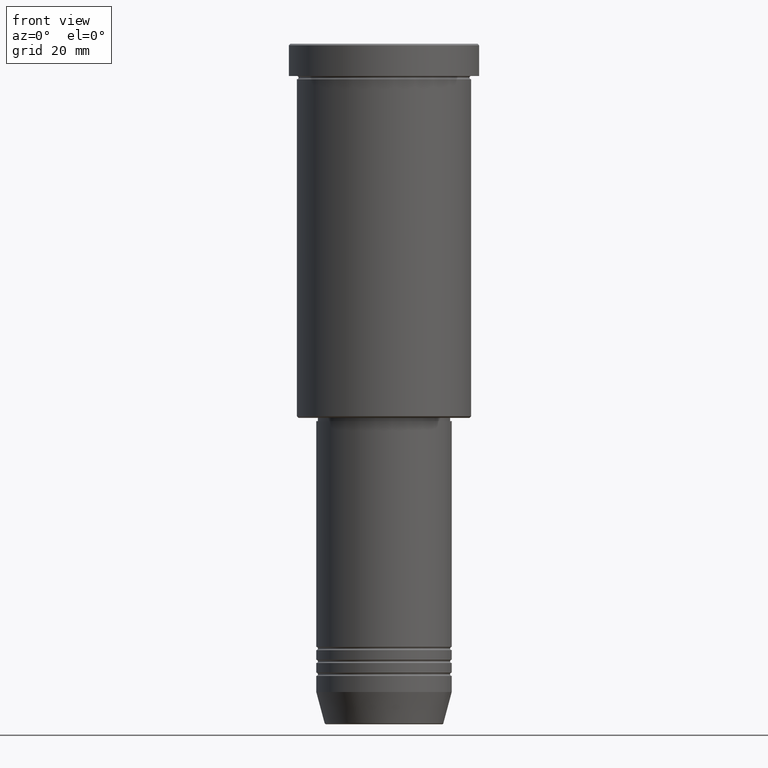
[diagram: clean part render]
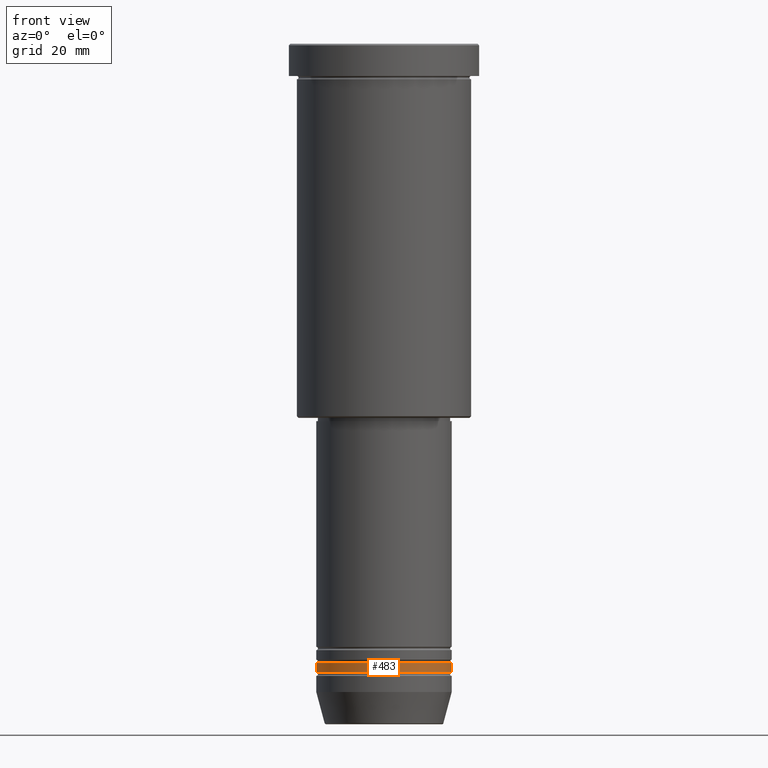
[diagram: same view with one face highlighted and labeled with its STEP entity id]
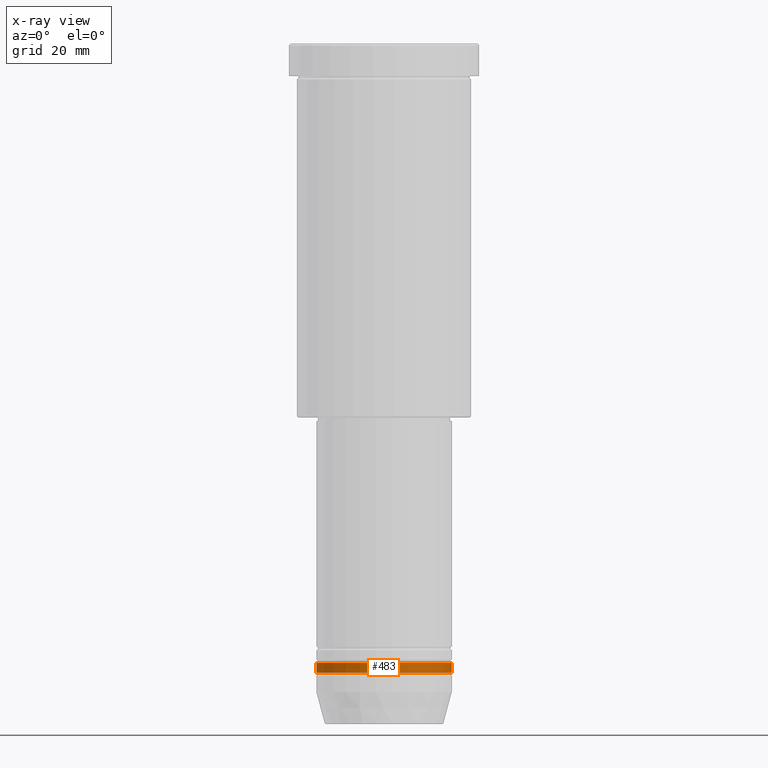
[diagram: x-ray of the same camera — body ghosted, the highlighted face saturated]
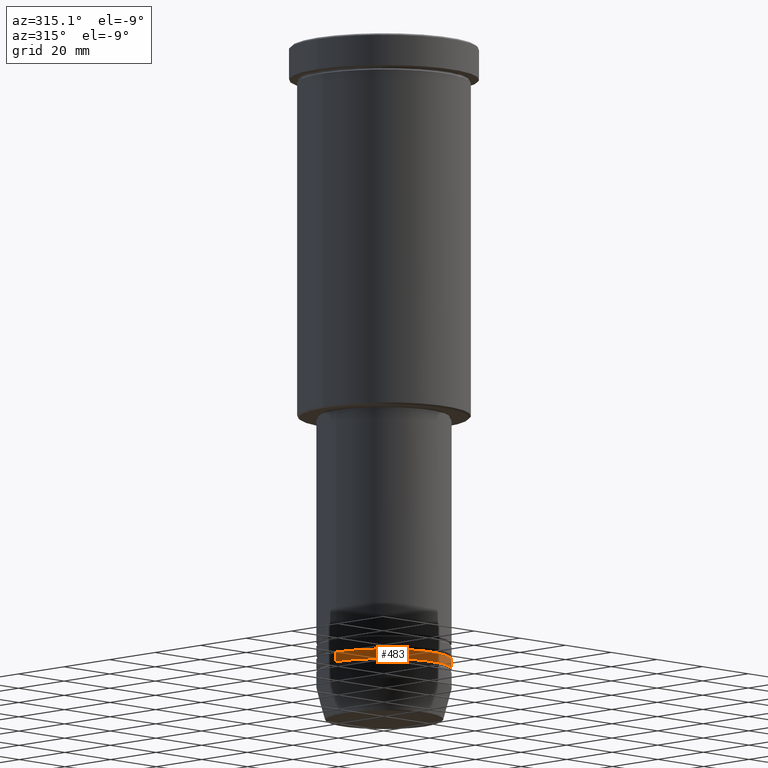
[diagram: same view with one face highlighted and labeled with its STEP entity id]
A machine part, front view. The second image highlights one B-rep face of the part: STEP entity #483.
The next image is the same camera in x-ray: the body ghosted, the highlighted face saturated — about 0% of this face is hidden behind the body in this view.
A second angle (auxiliary view) of the same face is appended — the face is thin or edge-on in the first view.
In plain terms, the highlighted cylindrical surface (partial cylindrical patch) has radius 21 mm, axis along (-0, -0, 1).
Its self-contained STEP definition (entity closure, byte-faithful):
#52 = CIRCLE ( 'NONE', #490, 21.00000000000000000 ) ;
#103 = DIRECTION ( 'NONE',  ( -0.000000000000000000, -0.000000000000000000, 1.000000000000000000 ) ) ;
#109 = EDGE_LOOP ( 'NONE', ( #404, #267, #1010, #192 ) ) ;
#142 = VERTEX_POINT ( 'NONE', #480 ) ;
#161 = VERTEX_POINT ( 'NONE', #741 ) ;
#163 = CARTESIAN_POINT ( 'NONE',  ( 21.00000000000000000, 0.000000000000000000, 0.000000000000000000 ) ) ;
#167 = AXIS2_PLACEMENT_3D ( 'NONE', #448, #103, #366 ) ;
#192 = ORIENTED_EDGE ( 'NONE', *, *, #780, .F. ) ;
#193 = FACE_OUTER_BOUND ( 'NONE', #109, .T. ) ;
#238 = EDGE_CURVE ( 'NONE', #597, #161, #434, .T. ) ;
#267 = ORIENTED_EDGE ( 'NONE', *, *, #238, .T. ) ;
#274 = VERTEX_POINT ( 'NONE', #761 ) ;
#338 = CARTESIAN_POINT ( 'NONE',  ( -21.00000000000000000, 2.571758278209441661E-15, 0.000000000000000000 ) ) ;
#366 = DIRECTION ( 'NONE',  ( 1.000000000000000000, 0.000000000000000000, 0.000000000000000000 ) ) ;
#401 = DIRECTION ( 'NONE',  ( 1.000000000000000000, 0.000000000000000000, 0.000000000000000000 ) ) ;
#404 = ORIENTED_EDGE ( 'NONE', *, *, #667, .F. ) ;
#434 = CIRCLE ( 'NONE', #1158, 21.00000000000000000 ) ;
#448 = CARTESIAN_POINT ( 'NONE',  ( 0.000000000000000000, 0.000000000000000000, 0.000000000000000000 ) ) ;
#480 = CARTESIAN_POINT ( 'NONE',  ( 21.00000000000000000, 0.000000000000000000, -191.9999999999999147 ) ) ;
#483 = ADVANCED_FACE ( 'NONE', ( #193 ), #1061, .T. ) ;
#490 = AXIS2_PLACEMENT_3D ( 'NONE', #1044, #695, #868 ) ;
#511 = EDGE_CURVE ( 'NONE', #161, #142, #993, .T. ) ;
#581 = CARTESIAN_POINT ( 'NONE',  ( 0.000000000000000000, 0.000000000000000000, -194.9999999999998863 ) ) ;
#591 = VECTOR ( 'NONE', #656, 1000.000000000000000 ) ;
#597 = VERTEX_POINT ( 'NONE', #609 ) ;
#609 = CARTESIAN_POINT ( 'NONE',  ( -21.00000000000000000, 2.571758278209441661E-15, -194.9999999999998863 ) ) ;
#656 = DIRECTION ( 'NONE',  ( -0.000000000000000000, -0.000000000000000000, 1.000000000000000000 ) ) ;
#667 = EDGE_CURVE ( 'NONE', #597, #274, #1136, .T. ) ;
#695 = DIRECTION ( 'NONE',  ( -0.000000000000000000, -0.000000000000000000, 1.000000000000000000 ) ) ;
#741 = CARTESIAN_POINT ( 'NONE',  ( 21.00000000000000000, 0.000000000000000000, -194.9999999999998863 ) ) ;
#761 = CARTESIAN_POINT ( 'NONE',  ( -21.00000000000000000, 2.571758278209441661E-15, -191.9999999999999147 ) ) ;
#780 = EDGE_CURVE ( 'NONE', #274, #142, #52, .T. ) ;
#849 = VECTOR ( 'NONE', #1029, 1000.000000000000000 ) ;
#868 = DIRECTION ( 'NONE',  ( 1.000000000000000000, 0.000000000000000000, 0.000000000000000000 ) ) ;
#993 = LINE ( 'NONE', #163, #591 ) ;
#1010 = ORIENTED_EDGE ( 'NONE', *, *, #511, .T. ) ;
#1029 = DIRECTION ( 'NONE',  ( -0.000000000000000000, -0.000000000000000000, 1.000000000000000000 ) ) ;
#1044 = CARTESIAN_POINT ( 'NONE',  ( 0.000000000000000000, 0.000000000000000000, -191.9999999999999147 ) ) ;
#1061 = CYLINDRICAL_SURFACE ( 'NONE', #167, 21.00000000000000000 ) ;
#1107 = DIRECTION ( 'NONE',  ( -0.000000000000000000, -0.000000000000000000, 1.000000000000000000 ) ) ;
#1136 = LINE ( 'NONE', #338, #849 ) ;
#1158 = AXIS2_PLACEMENT_3D ( 'NONE', #581, #1107, #401 ) ;